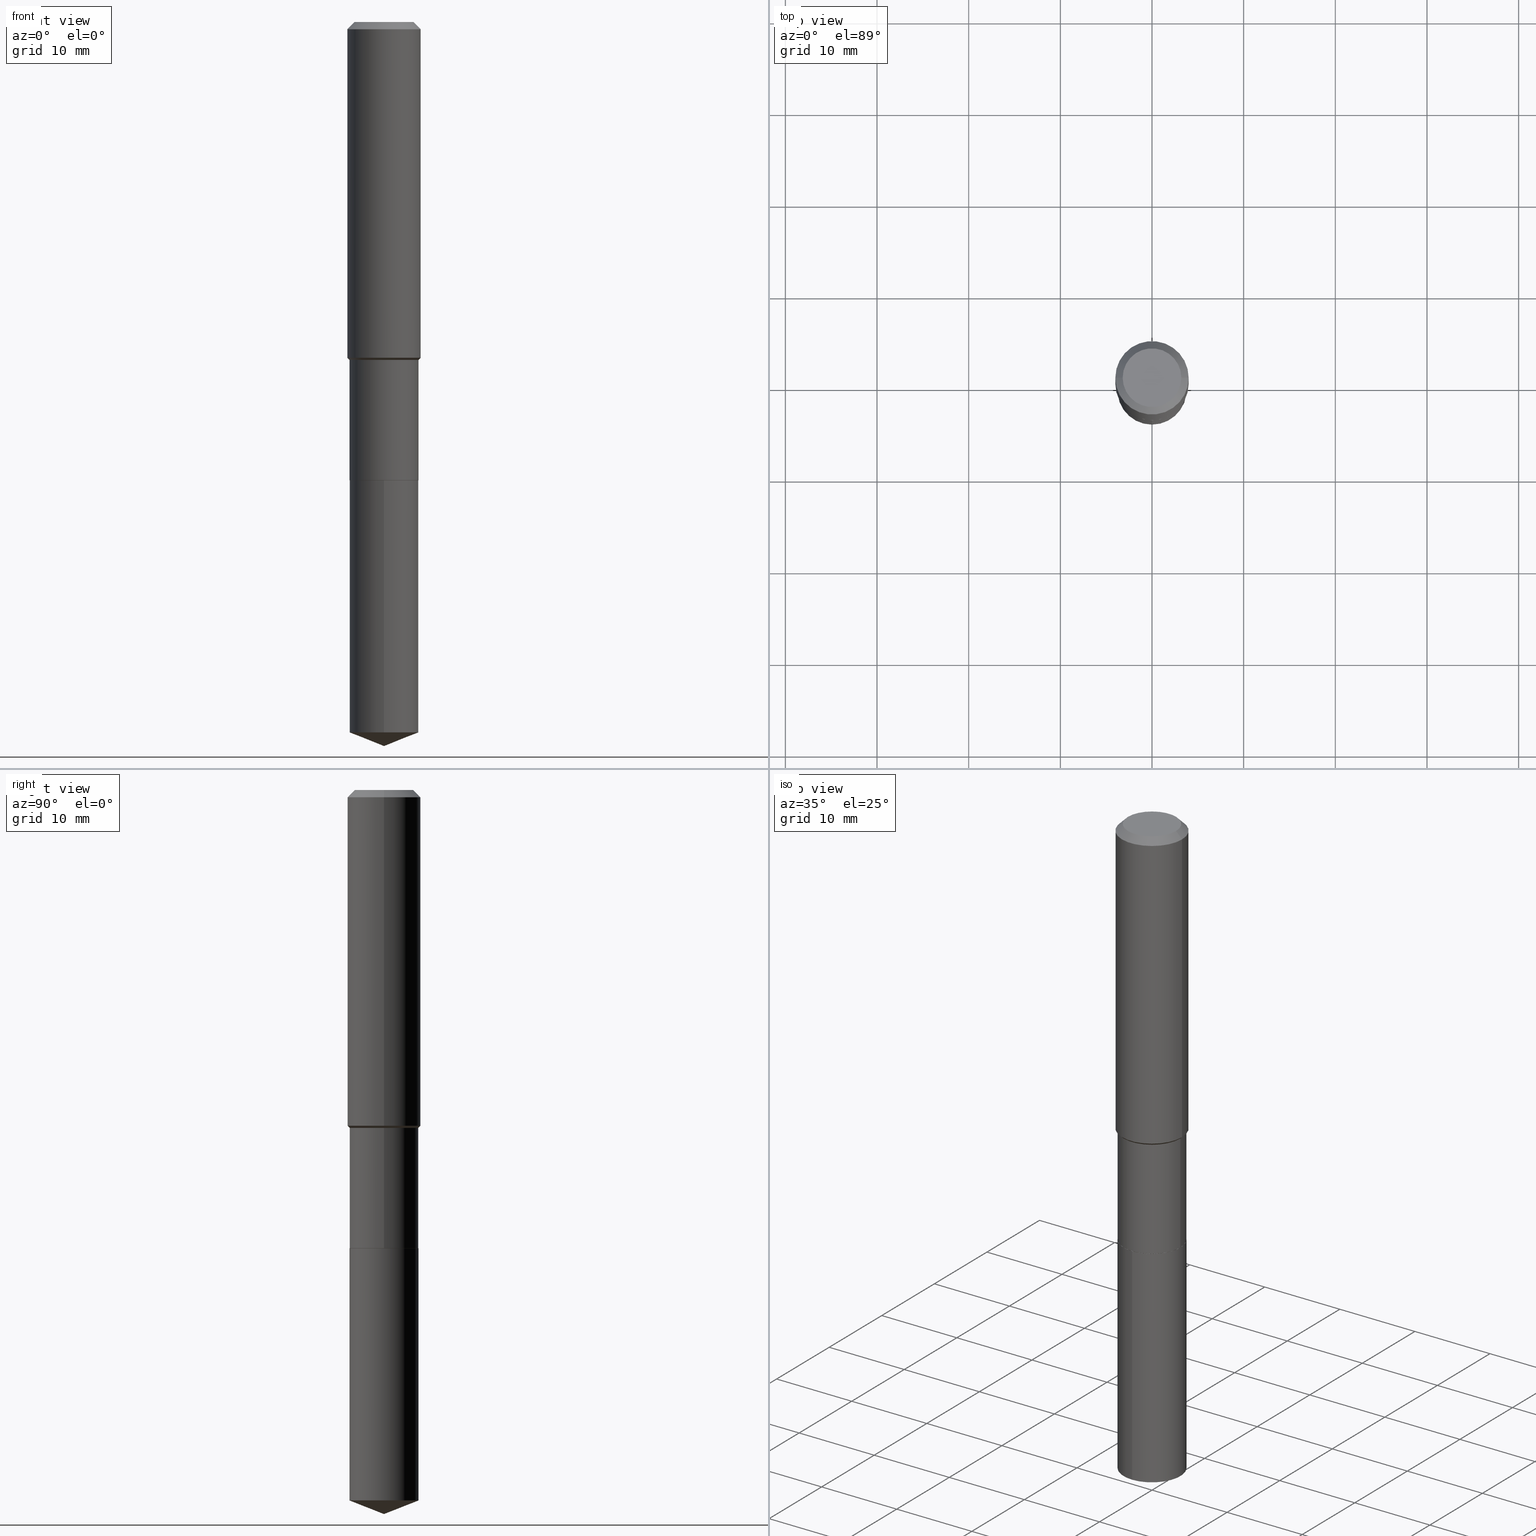
[diagram: canonical four-view strip — front | top / right | iso, engineering-drawing reading convention]
A machine part, canonical four-view strip (front | top / right | iso — engineering-drawing reading convention). The complete STEP part file that produces these views, byte-faithful:
ISO-10303-21;
HEADER;
FILE_DESCRIPTION (( 'STEP AP203' ),
    '1' );
FILE_NAME ('56414.STEP',
    '2024-04-24T17:22:41',
    ( '' ),
    ( '' ),
    'SwSTEP 2.0',
    'SolidWorks 2023',
    '' );
FILE_SCHEMA (( 'CONFIG_CONTROL_DESIGN' ));
ENDSEC;

DATA;
#1 = CALENDAR_DATE ( 2024, 24, 4 ) ;
#2 = DIRECTION ( 'NONE',  ( -2.445217522650849681E-29, 3.491841191166415000E-15, 1.000000000000000000 ) ) ;
#3 = CYLINDRICAL_SURFACE ( 'NONE', #223, 0.1575000000000000844 ) ;
#4 = DIRECTION ( 'NONE',  ( -2.445468806185136877E-29, 3.491481338843145188E-15, 1.000000000000000000 ) ) ;
#5 = ORIENTED_EDGE ( 'NONE', *, *, #111, .F. ) ;
#6 = DESIGN_CONTEXT ( 'detailed design', #249, 'design' ) ;
#7 = ADVANCED_FACE ( 'NONE', ( #159 ), #3, .T. ) ;
#8 = AXIS2_PLACEMENT_3D ( 'NONE', #341, #314, #172 ) ;
#9 = VECTOR ( 'NONE', #137, 39.37007874015748143 ) ;
#10 = FACE_OUTER_BOUND ( 'NONE', #26, .T. ) ;
#11 = DIRECTION ( 'NONE',  ( 1.000000000000000000, -6.982962677686265922E-15, 4.876176775795935793E-29 ) ) ;
#12 = EDGE_CURVE ( 'NONE', #297, #216, #461, .T. ) ;
#13 = DIRECTION ( 'NONE',  ( -2.445468806185136597E-29, 3.491481338843145583E-15, 1.000000000000000000 ) ) ;
#14 = CIRCLE ( 'NONE', #286, 0.1484499999999999154 ) ;
#15 = DIRECTION ( 'NONE',  ( -2.445468806185136877E-29, 3.491481338843145188E-15, 1.000000000000000000 ) ) ;
#16 = VERTEX_POINT ( 'NONE', #189 ) ;
#17 = ADVANCED_FACE ( 'NONE', ( #357 ), #451, .F. ) ;
#18 = EDGE_LOOP ( 'NONE', ( #400, #448, #209, #296 ) ) ;
#19 = DIRECTION ( 'NONE',  ( 1.000000000000000000, 0.000000000000000000, 0.000000000000000000 ) ) ;
#20 = ORIENTED_EDGE ( 'NONE', *, *, #56, .T. ) ;
#21 = LINE ( 'NONE', #260, #416 ) ;
#22 = EDGE_LOOP ( 'NONE', ( #258, #117, #34, #315 ) ) ;
#23 = DATE_AND_TIME ( #320, #383 ) ;
#24 = DIRECTION ( 'NONE',  ( -2.445217522650849681E-29, 3.491841191166415000E-15, 1.000000000000000000 ) ) ;
#25 = AXIS2_PLACEMENT_3D ( 'NONE', #226, #363, #444 ) ;
#26 = EDGE_LOOP ( 'NONE', ( #293, #489, #362, #246 ) ) ;
#27 = FACE_OUTER_BOUND ( 'NONE', #437, .T. ) ;
#28 = VECTOR ( 'NONE', #200, 39.37007874015748143 ) ;
#29 = ORIENTED_EDGE ( 'NONE', *, *, #422, .F. ) ;
#30 = CC_DESIGN_PERSON_AND_ORGANIZATION_ASSIGNMENT ( #310, #97, ( #54 ) ) ;
#31 = DATE_TIME_ROLE ( 'creation_date' ) ;
#32 = ORIENTED_EDGE ( 'NONE', *, *, #253, .T. ) ;
#33 = PERSON_AND_ORGANIZATION_ROLE ( 'design_supplier' ) ;
#34 = ORIENTED_EDGE ( 'NONE', *, *, #87, .T. ) ;
#35 = LOCAL_TIME ( 13, 22, 41.00000000000000000, #355 ) ;
#36 = AXIS2_PLACEMENT_3D ( 'NONE', #490, #481, #119 ) ;
#37 = VERTEX_POINT ( 'NONE', #482 ) ;
#38 = DIRECTION ( 'NONE',  ( -2.445217522650849681E-29, 3.491841191166415000E-15, 1.000000000000000000 ) ) ;
#39 = FACE_OUTER_BOUND ( 'NONE', #113, .T. ) ;
#40 = ADVANCED_FACE ( 'NONE', ( #408 ), #73, .T. ) ;
#41 = CARTESIAN_POINT ( 'NONE',  ( -8.866279621299083140E-28, 1.266144465408796120E-13, 36.25987874015748247 ) ) ;
#42 = CIRCLE ( 'NONE', #36, 0.1479499999999999982 ) ;
#43 = LINE ( 'NONE', #459, #28 ) ;
#44 = APPROVAL_PERSON_ORGANIZATION ( #353, #155, #227 ) ;
#45 = AXIS2_PLACEMENT_3D ( 'NONE', #472, #68, #478 ) ;
#46 = DIRECTION ( 'NONE',  ( -6.982962677686266711E-15, -1.000000000000000000, 3.498627837349979373E-15 ) ) ;
#47 = FACE_OUTER_BOUND ( 'NONE', #403, .T. ) ;
#48 = EDGE_CURVE ( 'NONE', #191, #480, #122, .T. ) ;
#49 = FACE_OUTER_BOUND ( 'NONE', #346, .T. ) ;
#50 = UNCERTAINTY_MEASURE_WITH_UNIT (LENGTH_MEASURE( 1.000000000000000082E-05 ), #140, 'distance_accuracy_value', 'NONE');
#51 = CIRCLE ( 'NONE', #358, 0.1260000000000000009 ) ;
#52 = CONICAL_SURFACE ( 'NONE', #454, 0.1484499999999999154, 0.7853981633974463916 ) ;
#53 = ORIENTED_EDGE ( 'NONE', *, *, #419, .T. ) ;
#54 = PRODUCT ( '56414', '56414', '', ( #378 ) ) ;
#55 = LENGTH_MEASURE_WITH_UNIT ( LENGTH_MEASURE( 0.02539999999999999897 ), #349 );
#56 = EDGE_CURVE ( 'NONE', #168, #156, #272, .T. ) ;
#57 = CARTESIAN_POINT ( 'NONE',  ( -0.1575000000000000011, -1.454029650871768556E-15, -0.03150000000000019451 ) ) ;
#58 = CARTESIAN_POINT ( 'NONE',  ( 1.054800691235942672E-15, 0.1484499999999892572, -3.051723989894963296 ) ) ;
#59 = ORIENTED_EDGE ( 'NONE', *, *, #431, .F. ) ;
#60 =( NAMED_UNIT ( * ) SI_UNIT ( $, .STERADIAN. ) SOLID_ANGLE_UNIT ( ) );
#61 = ORIENTED_EDGE ( 'NONE', *, *, #229, .F. ) ;
#62 = PRODUCT_RELATED_PRODUCT_CATEGORY ( 'detail', '', ( #54 ) ) ;
#63 = PERSON_AND_ORGANIZATION ( #91, #126 ) ;
#64 = ORIENTED_EDGE ( 'NONE', *, *, #124, .F. ) ;
#65 = DATE_AND_TIME ( #398, #205 ) ;
#66 = CARTESIAN_POINT ( 'NONE',  ( 7.605115538948672925E-29, -1.086032447276578313E-14, -3.110199999999999854 ) ) ;
#67 = SHAPE_DEFINITION_REPRESENTATION ( #415, #455 ) ;
#68 = DIRECTION ( 'NONE',  ( -2.445468806185136597E-29, 3.491481338843145583E-15, 1.000000000000000000 ) ) ;
#69 = EDGE_CURVE ( 'NONE', #133, #327, #379, .T. ) ;
#70 = AXIS2_PLACEMENT_3D ( 'NONE', #374, #120, #266 ) ;
#71 = CC_DESIGN_APPROVAL ( #155, ( #336 ) ) ;
#72 = ORIENTED_EDGE ( 'NONE', *, *, #94, .T. ) ;
#73 = CONICAL_SURFACE ( 'NONE', #143, 99.94676754584068590, 1.195550537616121956 ) ;
#74 = DIRECTION ( 'NONE',  ( -1.000000000000000000, 6.982962677686265922E-15, -4.876176775795935793E-29 ) ) ;
#75 = VECTOR ( 'NONE', #388, 39.37007874015748143 ) ;
#76 = APPROVAL_DATE_TIME ( #174, #487 ) ;
#77 = ORIENTED_EDGE ( 'NONE', *, *, #330, .F. ) ;
#78 = VERTEX_POINT ( 'NONE', #58 ) ;
#79 = CARTESIAN_POINT ( 'NONE',  ( -4.719860820353100843E-47, 6.738710358733633822E-33, 1.930043355456229866E-18 ) ) ;
#80 = DIRECTION ( 'NONE',  ( -0.7071067811865451302, 2.468850131082231817E-15, -0.7071067811865499042 ) ) ;
#81 = ORIENTED_EDGE ( 'NONE', *, *, #197, .T. ) ;
#82 = ORIENTED_EDGE ( 'NONE', *, *, #419, .F. ) ;
#83 = EDGE_CURVE ( 'NONE', #389, #16, #131, .T. ) ;
#84 = AXIS2_PLACEMENT_3D ( 'NONE', #202, #417, #238 ) ;
#85 = DIRECTION ( 'NONE',  ( 1.000000000000000000, -6.982962677686266711E-15, 4.876176775795936353E-29 ) ) ;
#86 = DIRECTION ( 'NONE',  ( 1.000000000000000000, -6.982962677686265133E-15, 0.000000000000000000 ) ) ;
#87 = EDGE_CURVE ( 'NONE', #327, #191, #151, .T. ) ;
#88 = CIRCLE ( 'NONE', #45, 0.1575000000000000011 ) ;
#89 = APPLICATION_CONTEXT ( 'configuration controlled 3d designs of mechanical parts and assemblies' ) ;
#90 = DIRECTION ( 'NONE',  ( 1.000000000000000000, -6.982962677686265133E-15, 0.000000000000000000 ) ) ;
#91 = PERSON ( 'UNSPECIFIED', 'UNSPECIFIED', 'UNSPECIFIED', ('UNSPECIFIED'), ('UNSPECIFIED'), ('UNSPECIFIED') ) ;
#92 = DIRECTION ( 'NONE',  ( -2.445217522650849681E-29, 3.491841191166415000E-15, 1.000000000000000000 ) ) ;
#93 = AXIS2_PLACEMENT_3D ( 'NONE', #79, #412, #74 ) ;
#94 = EDGE_CURVE ( 'NONE', #156, #168, #135, .T. ) ;
#95 = DIRECTION ( 'NONE',  ( 1.000000000000000000, -6.982962677686265922E-15, 4.876281427513067258E-29 ) ) ;
#96 = AXIS2_PLACEMENT_3D ( 'NONE', #424, #413, #86 ) ;
#97 = PERSON_AND_ORGANIZATION_ROLE ( 'design_owner' ) ;
#98 = LINE ( 'NONE', #345, #75 ) ;
#99 = EDGE_CURVE ( 'NONE', #216, #297, #421, .T. ) ;
#100 = ORIENTED_EDGE ( 'NONE', *, *, #130, .T. ) ;
#101 = DIRECTION ( 'NONE',  ( 2.445468806185136597E-29, -3.491481338843145583E-15, -1.000000000000000000 ) ) ;
#102 = VECTOR ( 'NONE', #328, 39.37007874015748143 ) ;
#103 = CIRCLE ( 'NONE', #453, 0.1484499999999999709 ) ;
#104 = ORIENTED_EDGE ( 'NONE', *, *, #422, .T. ) ;
#105 = CARTESIAN_POINT ( 'NONE',  ( -0.1479499999999999982, -5.821733037955664087E-15, -1.968500000000000139 ) ) ;
#106 = ORIENTED_EDGE ( 'NONE', *, *, #197, .F. ) ;
#107 = COORDINATED_UNIVERSAL_TIME_OFFSET ( 5, 0, .BEHIND. ) ;
#108 = ORIENTED_EDGE ( 'NONE', *, *, #402, .F. ) ;
#109 = CARTESIAN_POINT ( 'NONE',  ( -0.1484500000000000264, -4.914759527851199198E-15, -1.968000000000000194 ) ) ;
#110 = COORDINATED_UNIVERSAL_TIME_OFFSET ( 5, 0, .BEHIND. ) ;
#111 = EDGE_CURVE ( 'NONE', #37, #395, #21, .T. ) ;
#112 = DIRECTION ( 'NONE',  ( -2.445468806185136597E-29, 3.491481338843145583E-15, 1.000000000000000000 ) ) ;
#113 = EDGE_LOOP ( 'NONE', ( #72, #81, #64, #256 ) ) ;
#114 = VECTOR ( 'NONE', #399, 39.37007874015748143 ) ;
#115 = APPROVAL_STATUS ( 'not_yet_approved' ) ;
#116 = EDGE_LOOP ( 'NONE', ( #277, #32, #443, #319 ) ) ;
#117 = ORIENTED_EDGE ( 'NONE', *, *, #164, .T. ) ;
#118 = ADVANCED_FACE ( 'NONE', ( #287 ), #316, .T. ) ;
#119 = DIRECTION ( 'NONE',  ( 1.000000000000000000, -6.982962677686265133E-15, 0.000000000000000000 ) ) ;
#120 = DIRECTION ( 'NONE',  ( 2.445468806185136597E-29, -3.491481338843145583E-15, -1.000000000000000000 ) ) ;
#121 = CONICAL_SURFACE ( 'NONE', #427, 0.1575000000000000011, 0.7853981633974449483 ) ;
#122 = CIRCLE ( 'NONE', #384, 0.1484499999999999986 ) ;
#123 = CONICAL_SURFACE ( 'NONE', #434, 99.94676754584068590, 1.195550537616121956 ) ;
#124 = EDGE_CURVE ( 'NONE', #16, #395, #88, .T. ) ;
#125 = FACE_OUTER_BOUND ( 'NONE', #290, .T. ) ;
#126 = ORGANIZATION ( 'UNSPECIFIED', 'UNSPECIFIED', '' ) ;
#127 = DIRECTION ( 'NONE',  ( 1.000000000000000000, -6.982962677686267499E-15, 0.000000000000000000 ) ) ;
#128 = CARTESIAN_POINT ( 'NONE',  ( 4.813905344975441835E-29, -6.872981015512731707E-15, -1.968500000000000139 ) ) ;
#129 = DIRECTION ( 'NONE',  ( -2.445468806185136597E-29, 3.491481338843145583E-15, 1.000000000000000000 ) ) ;
#130 = EDGE_CURVE ( 'NONE', #418, #297, #488, .T. ) ;
#131 = LINE ( 'NONE', #188, #102 ) ;
#132 = DIRECTION ( 'NONE',  ( 0.7071067811866320607, -2.468850131083142557E-15, 0.7071067811864629737 ) ) ;
#133 = VERTEX_POINT ( 'NONE', #66 ) ;
#134 = DIRECTION ( 'NONE',  ( -2.445468806185136597E-29, 3.491481338843145583E-15, 1.000000000000000000 ) ) ;
#135 = CIRCLE ( 'NONE', #247, 0.1575000000000001676 ) ;
#136 = EDGE_LOOP ( 'NONE', ( #29, #484, #352 ) ) ;
#137 = DIRECTION ( 'NONE',  ( 6.611014441532073689E-15, 0.9304175679820281264, 0.3665012267242882538 ) ) ;
#138 = EDGE_CURVE ( 'NONE', #395, #16, #171, .T. ) ;
#139 = EDGE_LOOP ( 'NONE', ( #231, #61 ) ) ;
#140 =( CONVERSION_BASED_UNIT ( 'INCH', #55 ) LENGTH_UNIT ( ) NAMED_UNIT ( #372 ) );
#141 = ORIENTED_EDGE ( 'NONE', *, *, #330, .T. ) ;
#142 = CARTESIAN_POINT ( 'NONE',  ( 4.813905344975441835E-29, -6.872981015512731707E-15, -1.968500000000000139 ) ) ;
#143 = AXIS2_PLACEMENT_3D ( 'NONE', #299, #38, #476 ) ;
#144 = VECTOR ( 'NONE', #368, 39.37007874015748143 ) ;
#145 = DIRECTION ( 'NONE',  ( -6.982962677686265133E-15, -1.000000000000000000, 3.680495781292372402E-15 ) ) ;
#146 = ORIENTED_EDGE ( 'NONE', *, *, #402, .T. ) ;
#147 = CYLINDRICAL_SURFACE ( 'NONE', #25, 0.1484499999999999431 ) ;
#148 = ADVANCED_FACE ( 'NONE', ( #406 ), #220, .T. ) ;
#149 = DIRECTION ( 'NONE',  ( -2.445468806185136597E-29, 3.491481338843145583E-15, 1.000000000000000000 ) ) ;
#150 = CARTESIAN_POINT ( 'NONE',  ( 0.1575000000000000844, -1.099816621735587677E-15, 7.679978421878603638E-30 ) ) ;
#151 = LINE ( 'NONE', #436, #178 ) ;
#152 = CARTESIAN_POINT ( 'NONE',  ( 0.000000000000000000, 0.000000000000000000, 0.000000000000000000 ) ) ;
#153 = AXIS2_PLACEMENT_3D ( 'NONE', #326, #112, #442 ) ;
#154 = DIRECTION ( 'NONE',  ( -0.7071067811865461294, 7.493145998870349427E-15, 0.7071067811865489050 ) ) ;
#155 = APPROVAL ( #115, 'UNSPECIFIED' ) ;
#156 = VERTEX_POINT ( 'NONE', #289 ) ;
#157 = CYLINDRICAL_SURFACE ( 'NONE', #382, 0.1484499999999999431 ) ;
#158 = DIRECTION ( 'NONE',  ( -2.445468806185136877E-29, 3.491481338843145188E-15, 1.000000000000000000 ) ) ;
#159 = FACE_OUTER_BOUND ( 'NONE', #264, .T. ) ;
#160 = CC_DESIGN_APPROVAL ( #487, ( #370 ) ) ;
#161 = DIRECTION ( 'NONE',  ( -2.445468806185136597E-29, 3.491481338843145583E-15, 1.000000000000000000 ) ) ;
#162 = LOCAL_TIME ( 13, 22, 41.00000000000000000, #107 ) ;
#163 = FACE_OUTER_BOUND ( 'NONE', #116, .T. ) ;
#164 = EDGE_CURVE ( 'NONE', #78, #327, #404, .T. ) ;
#165 = PERSON_AND_ORGANIZATION ( #91, #126 ) ;
#166 = ORIENTED_EDGE ( 'NONE', *, *, #466, .T. ) ;
#167 = CARTESIAN_POINT ( 'NONE',  ( 0.000000000000000000, 0.000000000000000000, 0.000000000000000000 ) ) ;
#168 = VERTEX_POINT ( 'NONE', #340 ) ;
#169 = CC_DESIGN_PERSON_AND_ORGANIZATION_ASSIGNMENT ( #63, #254, ( #338 ) ) ;
#170 = CC_DESIGN_APPROVAL ( #261, ( #338 ) ) ;
#171 = CIRCLE ( 'NONE', #153, 0.1575000000000000011 ) ;
#172 = DIRECTION ( 'NONE',  ( 1.000000000000000000, -6.982962677686265133E-15, 0.000000000000000000 ) ) ;
#173 = ORIENTED_EDGE ( 'NONE', *, *, #210, .T. ) ;
#174 = DATE_AND_TIME ( #405, #35 ) ;
#175 = DIRECTION ( 'NONE',  ( -2.445468806185136597E-29, 3.491481338843145583E-15, 1.000000000000000000 ) ) ;
#176 = ORIENTED_EDGE ( 'NONE', *, *, #270, .F. ) ;
#177 = DATE_AND_TIME ( #257, #162 ) ;
#178 = VECTOR ( 'NONE', #2, 39.37007874015748143 ) ;
#179 = ADVANCED_FACE ( 'NONE', ( #163 ), #242, .T. ) ;
#180 = VECTOR ( 'NONE', #158, 39.37007874015748143 ) ;
#181 = ORIENTED_EDGE ( 'NONE', *, *, #138, .T. ) ;
#182 = APPROVAL_ROLE ( '' ) ;
#183 = LINE ( 'NONE', #150, #475 ) ;
#184 = APPROVAL_DATE_TIME ( #322, #261 ) ;
#185 = ORIENTED_EDGE ( 'NONE', *, *, #278, .T. ) ;
#186 = DIRECTION ( 'NONE',  ( 1.000000000000000000, -6.982962677686265133E-15, 0.000000000000000000 ) ) ;
#187 = EDGE_CURVE ( 'NONE', #440, #418, #207, .T. ) ;
#188 = CARTESIAN_POINT ( 'NONE',  ( 0.1575000000000000011, -1.190510096822576026E-15, -0.03150000000000019451 ) ) ;
#189 = CARTESIAN_POINT ( 'NONE',  ( 0.1575000000000000011, -1.209798283909146741E-15, -0.03150000000000019451 ) ) ;
#190 = LINE ( 'NONE', #194, #180 ) ;
#191 = VERTEX_POINT ( 'NONE', #386 ) ;
#192 = CARTESIAN_POINT ( 'NONE',  ( 3.549597972177726133E-29, -5.067885163330826020E-15, -1.451500000000000012 ) ) ;
#193 = CARTESIAN_POINT ( 'NONE',  ( 7.605115538948672925E-29, -1.086032447276578629E-14, -3.110199999999999854 ) ) ;
#194 = CARTESIAN_POINT ( 'NONE',  ( 0.1484499999999999431, -1.036620809502525896E-15, 7.238684423669065009E-30 ) ) ;
#195 = ORIENTED_EDGE ( 'NONE', *, *, #12, .F. ) ;
#196 = AXIS2_PLACEMENT_3D ( 'NONE', #206, #92, #447 ) ;
#197 = EDGE_CURVE ( 'NONE', #168, #395, #273, .T. ) ;
#198 = APPROVAL_PERSON_ORGANIZATION ( #165, #261, #435 ) ;
#199 = AXIS2_PLACEMENT_3D ( 'NONE', #255, #409, #323 ) ;
#200 = DIRECTION ( 'NONE',  ( -2.445468806185136877E-29, 3.491481338843145188E-15, 1.000000000000000000 ) ) ;
#201 = CONICAL_SURFACE ( 'NONE', #473, 0.1479499999999999982, 0.7853981633975678500 ) ;
#202 = CARTESIAN_POINT ( 'NONE',  ( 4.813905344975441835E-29, -6.872981015512731707E-15, -1.968500000000000139 ) ) ;
#203 = ADVANCED_FACE ( 'NONE', ( #463 ), #303, .T. ) ;
#204 = CARTESIAN_POINT ( 'NONE',  ( 7.606113517245099603E-29, -1.085890773416907308E-14, -3.110199999999999854 ) ) ;
#205 = LOCAL_TIME ( 13, 22, 41.00000000000000000, #359 ) ;
#206 = CARTESIAN_POINT ( 'NONE',  ( 4.813905344975441835E-29, -6.872981015512731707E-15, -1.968500000000000139 ) ) ;
#207 = CIRCLE ( 'NONE', #467, 0.1479499999999999982 ) ;
#208 = LINE ( 'NONE', #204, #9 ) ;
#209 = ORIENTED_EDGE ( 'NONE', *, *, #94, .F. ) ;
#210 = EDGE_CURVE ( 'NONE', #297, #392, #43, .T. ) ;
#211 = ORIENTED_EDGE ( 'NONE', *, *, #99, .F. ) ;
#212 = CARTESIAN_POINT ( 'NONE',  ( -9.439721640706201686E-47, 1.347742071746726764E-32, 3.860086710912459732E-18 ) ) ;
#213 = ORIENTED_EDGE ( 'NONE', *, *, #187, .T. ) ;
#214 =( NAMED_UNIT ( * ) PLANE_ANGLE_UNIT ( ) SI_UNIT ( $, .RADIAN. ) );
#215 = CLOSED_SHELL ( 'NONE', ( #179, #312, #40, #148, #380 ) ) ;
#216 = VERTEX_POINT ( 'NONE', #339 ) ;
#217 = DATE_TIME_ROLE ( 'classification_date' ) ;
#218 = CARTESIAN_POINT ( 'NONE',  ( 3.527466479481750238E-29, -5.036287257214294044E-15, -1.442449999999999788 ) ) ;
#219 = ADVANCED_FACE ( 'NONE', ( #10 ), #52, .T. ) ;
#220 = CYLINDRICAL_SURFACE ( 'NONE', #224, 0.1484499999999999986 ) ;
#221 = ORIENTED_EDGE ( 'NONE', *, *, #466, .F. ) ;
#222 = SECURITY_CLASSIFICATION_LEVEL ( 'unclassified' ) ;
#223 = AXIS2_PLACEMENT_3D ( 'NONE', #152, #149, #262 ) ;
#224 = AXIS2_PLACEMENT_3D ( 'NONE', #356, #24, #145 ) ;
#225 = ORIENTED_EDGE ( 'NONE', *, *, #138, .F. ) ;
#226 = CARTESIAN_POINT ( 'NONE',  ( 0.000000000000000000, 0.000000000000000000, 0.000000000000000000 ) ) ;
#227 = APPROVAL_ROLE ( '' ) ;
#228 = DIRECTION ( 'NONE',  ( 1.000000000000000000, -6.982962677686268288E-15, 0.000000000000000000 ) ) ;
#229 = EDGE_CURVE ( 'NONE', #418, #440, #42, .T. ) ;
#230 = APPROVAL_STATUS ( 'not_yet_approved' ) ;
#231 = ORIENTED_EDGE ( 'NONE', *, *, #187, .F. ) ;
#232 = CARTESIAN_POINT ( 'NONE',  ( -0.1484499999999999154, -4.013084472094958290E-15, -1.451500000000000012 ) ) ;
#233 = ORIENTED_EDGE ( 'NONE', *, *, #99, .T. ) ;
#234 = LINE ( 'NONE', #232, #309 ) ;
#235 = CARTESIAN_POINT ( 'NONE',  ( 1.054800691235916639E-15, 0.1484499999999931152, -1.968500000000000583 ) ) ;
#236 = DIRECTION ( 'NONE',  ( -6.982962677686265133E-15, -1.000000000000000000, 3.680495781292372402E-15 ) ) ;
#237 = ADVANCED_FACE ( 'NONE', ( #485 ), #365, .F. ) ;
#238 = DIRECTION ( 'NONE',  ( 6.982962677686265922E-15, 1.000000000000000000, -3.491841191166415000E-15 ) ) ;
#239 = DIRECTION ( 'NONE',  ( 1.000000000000000000, -6.982962677686265133E-15, 0.000000000000000000 ) ) ;
#240 = EDGE_CURVE ( 'NONE', #392, #168, #234, .T. ) ;
#241 = CARTESIAN_POINT ( 'NONE',  ( 4.813905344975441835E-29, -6.872981015512731707E-15, -1.968500000000000139 ) ) ;
#242 = CYLINDRICAL_SURFACE ( 'NONE', #196, 0.1484499999999999986 ) ;
#243 = CARTESIAN_POINT ( 'NONE',  ( 3.527466479481750238E-29, -5.036287257214294044E-15, -1.442449999999999788 ) ) ;
#244 = DIRECTION ( 'NONE',  ( -1.000000000000000000, 6.982962677686265922E-15, 0.000000000000000000 ) ) ;
#245 = CARTESIAN_POINT ( 'NONE',  ( 4.813905344975441835E-29, -6.872981015512731707E-15, -1.968500000000000139 ) ) ;
#246 = ORIENTED_EDGE ( 'NONE', *, *, #56, .F. ) ;
#247 = AXIS2_PLACEMENT_3D ( 'NONE', #218, #175, #263 ) ;
#248 = CIRCLE ( 'NONE', #428, 0.1260000000000000009 ) ;
#249 = APPLICATION_CONTEXT ( 'configuration controlled 3d designs of mechanical parts and assemblies' ) ;
#250 = EDGE_LOOP ( 'NONE', ( #53, #166 ) ) ;
#251 =( GEOMETRIC_REPRESENTATION_CONTEXT ( 3 ) GLOBAL_UNCERTAINTY_ASSIGNED_CONTEXT ( ( #50 ) ) GLOBAL_UNIT_ASSIGNED_CONTEXT ( ( #140, #214, #60 ) ) REPRESENTATION_CONTEXT ( 'NONE', 'WORKASPACE' ) );
#252 = AXIS2_PLACEMENT_3D ( 'NONE', #298, #367, #228 ) ;
#253 = EDGE_CURVE ( 'NONE', #78, #480, #371, .T. ) ;
#254 = PERSON_AND_ORGANIZATION_ROLE ( 'creator' ) ;
#255 = CARTESIAN_POINT ( 'NONE',  ( 4.812682610572349594E-29, -6.871235274843310993E-15, -1.968000000000000194 ) ) ;
#256 = ORIENTED_EDGE ( 'NONE', *, *, #278, .F. ) ;
#257 = CALENDAR_DATE ( 2024, 24, 4 ) ;
#258 = ORIENTED_EDGE ( 'NONE', *, *, #253, .F. ) ;
#259 = VECTOR ( 'NONE', #15, 39.37007874015748143 ) ;
#260 = CARTESIAN_POINT ( 'NONE',  ( -0.1575000000000000011, 9.898349595620272334E-16, -0.03150000000000019451 ) ) ;
#261 = APPROVAL ( #230, 'UNSPECIFIED' ) ;
#262 = DIRECTION ( 'NONE',  ( 1.000000000000000000, -6.982962677686267499E-15, 4.876176775795936353E-29 ) ) ;
#263 = DIRECTION ( 'NONE',  ( 1.000000000000000000, -6.982962677686267499E-15, 0.000000000000000000 ) ) ;
#264 = EDGE_LOOP ( 'NONE', ( #106, #20, #185, #225 ) ) ;
#265 = DIRECTION ( 'NONE',  ( -2.445468806185136597E-29, 3.491481338843145583E-15, 1.000000000000000000 ) ) ;
#266 = DIRECTION ( 'NONE',  ( -1.000000000000000000, 6.982962677686265922E-15, 0.000000000000000000 ) ) ;
#267 = CIRCLE ( 'NONE', #385, 0.1484499999999999986 ) ;
#268 = CARTESIAN_POINT ( 'NONE',  ( 7.462623626022371955E-29, -1.065542716268759565E-14, -3.051723989894962852 ) ) ;
#269 = PLANE ( 'NONE',  #84 ) ;
#270 = EDGE_CURVE ( 'NONE', #327, #78, #103, .T. ) ;
#271 = CC_DESIGN_SECURITY_CLASSIFICATION ( #336, ( #370 ) ) ;
#272 = CIRCLE ( 'NONE', #308, 0.1575000000000001676 ) ;
#273 = LINE ( 'NONE', #274, #259 ) ;
#274 = CARTESIAN_POINT ( 'NONE',  ( -0.1575000000000000844, 1.119104808822158392E-15, -7.747322767151481189E-30 ) ) ;
#275 = CARTESIAN_POINT ( 'NONE',  ( -0.1479499999999999982, -5.819083810781552886E-15, -1.968500000000000139 ) ) ;
#276 = DIRECTION ( 'NONE',  ( -6.497071151882126147E-15, -0.9304175679820254619, 0.3665012267242948041 ) ) ;
#277 = ORIENTED_EDGE ( 'NONE', *, *, #270, .T. ) ;
#278 = EDGE_CURVE ( 'NONE', #156, #16, #183, .T. ) ;
#279 = CIRCLE ( 'NONE', #8, 0.1484499999999999154 ) ;
#280 = CARTESIAN_POINT ( 'NONE',  ( 0.1479499999999999982, -7.906110343676414596E-15, -1.968500000000000139 ) ) ;
#281 = ORIENTED_EDGE ( 'NONE', *, *, #83, .T. ) ;
#282 = CARTESIAN_POINT ( 'NONE',  ( -0.1484499999999999154, -4.914759527851200776E-15, -1.451500000000000012 ) ) ;
#283 = ORIENTED_EDGE ( 'NONE', *, *, #48, .T. ) ;
#284 = ORIENTED_EDGE ( 'NONE', *, *, #375, .F. ) ;
#285 = AXIS2_PLACEMENT_3D ( 'NONE', #167, #393, #19 ) ;
#286 = AXIS2_PLACEMENT_3D ( 'NONE', #458, #161, #304 ) ;
#287 = FACE_OUTER_BOUND ( 'NONE', #470, .T. ) ;
#288 = PERSON_AND_ORGANIZATION ( #91, #126 ) ;
#289 = CARTESIAN_POINT ( 'NONE',  ( 0.1575000000000001676, -6.136103878949882313E-15, -1.442449999999999788 ) ) ;
#290 = EDGE_LOOP ( 'NONE', ( #283, #364 ) ) ;
#291 = ADVANCED_FACE ( 'NONE', ( #324 ), #157, .T. ) ;
#292 = DIRECTION ( 'NONE',  ( -2.445468806185136597E-29, 3.491481338843145583E-15, 1.000000000000000000 ) ) ;
#293 = ORIENTED_EDGE ( 'NONE', *, *, #240, .F. ) ;
#294 = DIRECTION ( 'NONE',  ( -6.982962677686265133E-15, -1.000000000000000000, 3.680495781292373191E-15 ) ) ;
#295 = AXIS2_PLACEMENT_3D ( 'NONE', #142, #292, #321 ) ;
#296 = ORIENTED_EDGE ( 'NONE', *, *, #438, .F. ) ;
#297 = VERTEX_POINT ( 'NONE', #109 ) ;
#298 = CARTESIAN_POINT ( 'NONE',  ( 4.812682610572349594E-29, -6.871235274843310993E-15, -1.968000000000000194 ) ) ;
#299 = CARTESIAN_POINT ( 'NONE',  ( -8.866279621299083140E-28, 1.266144465408796120E-13, 36.25987874015748247 ) ) ;
#300 = CYLINDRICAL_SURFACE ( 'NONE', #302, 0.1575000000000000844 ) ;
#301 = ADVANCED_FACE ( 'NONE', ( #27 ), #147, .T. ) ;
#302 = AXIS2_PLACEMENT_3D ( 'NONE', #333, #377, #450 ) ;
#303 = CONICAL_SURFACE ( 'NONE', #96, 0.1484499999999999154, 0.7853981633974463916 ) ;
#304 = DIRECTION ( 'NONE',  ( 1.000000000000000000, -6.982962677686265133E-15, 0.000000000000000000 ) ) ;
#305 = CC_DESIGN_PERSON_AND_ORGANIZATION_ASSIGNMENT ( #396, #441, ( #370 ) ) ;
#306 = CARTESIAN_POINT ( 'NONE',  ( -1.036620809502450954E-15, -0.1484500000000105457, -3.051723989894962408 ) ) ;
#307 = CARTESIAN_POINT ( 'NONE',  ( 4.813905344975441835E-29, -6.872981015512731707E-15, -1.968500000000000139 ) ) ;
#308 = AXIS2_PLACEMENT_3D ( 'NONE', #243, #456, #127 ) ;
#309 = VECTOR ( 'NONE', #154, 39.37007874015748143 ) ;
#310 = PERSON_AND_ORGANIZATION ( #91, #126 ) ;
#311 = CARTESIAN_POINT ( 'NONE',  ( 0.1479499999999999982, -7.906110343676414596E-15, -1.968500000000000139 ) ) ;
#312 = ADVANCED_FACE ( 'NONE', ( #47 ), #123, .T. ) ;
#313 = EDGE_LOOP ( 'NONE', ( #348, #82, #465, #181 ) ) ;
#314 = DIRECTION ( 'NONE',  ( -2.445468806185136597E-29, 3.491481338843145583E-15, 1.000000000000000000 ) ) ;
#315 = ORIENTED_EDGE ( 'NONE', *, *, #318, .F. ) ;
#316 = CONICAL_SURFACE ( 'NONE', #295, 0.1479499999999999982, 0.7853981633975678500 ) ;
#317 = FACE_OUTER_BOUND ( 'NONE', #313, .T. ) ;
#318 = EDGE_CURVE ( 'NONE', #480, #191, #267, .T. ) ;
#319 = ORIENTED_EDGE ( 'NONE', *, *, #87, .F. ) ;
#320 = CALENDAR_DATE ( 2024, 24, 4 ) ;
#321 = DIRECTION ( 'NONE',  ( 1.000000000000000000, -6.982962677686265133E-15, 0.000000000000000000 ) ) ;
#322 = DATE_AND_TIME ( #1, #394 ) ;
#323 = DIRECTION ( 'NONE',  ( 1.000000000000000000, -6.982962677686268288E-15, 0.000000000000000000 ) ) ;
#324 = FACE_OUTER_BOUND ( 'NONE', #425, .T. ) ;
#325 = PERSON_AND_ORGANIZATION_ROLE ( 'classification_officer' ) ;
#326 = CARTESIAN_POINT ( 'NONE',  ( 7.703226739483228723E-31, -1.099816621735597661E-16, -0.03150000000000019451 ) ) ;
#327 = VERTEX_POINT ( 'NONE', #306 ) ;
#328 = DIRECTION ( 'NONE',  ( 0.7071067811865451302, -7.319954787623248157E-15, -0.7071067811865499042 ) ) ;
#329 = DIRECTION ( 'NONE',  ( -2.445217522650849681E-29, 3.491841191166415000E-15, 1.000000000000000000 ) ) ;
#330 = EDGE_CURVE ( 'NONE', #216, #410, #190, .T. ) ;
#331 = ORIENTED_EDGE ( 'NONE', *, *, #130, .F. ) ;
#332 = DIRECTION ( 'NONE',  ( -6.982962677686265133E-15, -1.000000000000000000, 3.680495781292373191E-15 ) ) ;
#333 = CARTESIAN_POINT ( 'NONE',  ( 0.000000000000000000, 0.000000000000000000, 0.000000000000000000 ) ) ;
#334 = DIRECTION ( 'NONE',  ( -2.445217522650849681E-29, 3.491841191166415000E-15, 1.000000000000000000 ) ) ;
#335 = AXIS2_PLACEMENT_3D ( 'NONE', #483, #439, #294 ) ;
#336 = SECURITY_CLASSIFICATION ( '', '', #222 ) ;
#337 = AXIS2_PLACEMENT_3D ( 'NONE', #245, #479, #11 ) ;
#338 = PRODUCT_DEFINITION ( 'UNKNOWN', '', #370, #6 ) ;
#339 = CARTESIAN_POINT ( 'NONE',  ( 0.1484499999999999986, -7.907856084345836888E-15, -1.968000000000000194 ) ) ;
#340 = CARTESIAN_POINT ( 'NONE',  ( -0.1575000000000001676, -3.917182448392135652E-15, -1.442449999999999788 ) ) ;
#341 = CARTESIAN_POINT ( 'NONE',  ( 3.549597972177726133E-29, -5.067885163330826020E-15, -1.451500000000000012 ) ) ;
#342 = CLOSED_SHELL ( 'NONE', ( #118, #369, #361, #203, #301, #291, #219, #7, #474, #237, #17, #457 ) ) ;
#343 = VECTOR ( 'NONE', #132, 39.37007874015748143 ) ;
#344 = DIRECTION ( 'NONE',  ( -2.445468806185136597E-29, 3.491481338843145583E-15, 1.000000000000000000 ) ) ;
#345 = CARTESIAN_POINT ( 'NONE',  ( 0.1484499999999999154, -6.104505972833351915E-15, -1.451500000000000012 ) ) ;
#346 = EDGE_LOOP ( 'NONE', ( #221, #281, #397, #5 ) ) ;
#347 = CARTESIAN_POINT ( 'NONE',  ( -9.439721640706201686E-47, 1.347742071746726764E-32, 3.860086710912459732E-18 ) ) ;
#348 = ORIENTED_EDGE ( 'NONE', *, *, #83, .F. ) ;
#349 =( LENGTH_UNIT ( ) NAMED_UNIT ( * ) SI_UNIT ( $, .METRE. ) );
#350 = CC_DESIGN_PERSON_AND_ORGANIZATION_ASSIGNMENT ( #288, #325, ( #336 ) ) ;
#351 = CARTESIAN_POINT ( 'NONE',  ( 1.054800691235943263E-15, 0.1484499999999930875, -1.968500000000000583 ) ) ;
#352 = ORIENTED_EDGE ( 'NONE', *, *, #164, .F. ) ;
#353 = PERSON_AND_ORGANIZATION ( #91, #126 ) ;
#354 = EDGE_LOOP ( 'NONE', ( #331, #432, #146, #195 ) ) ;
#355 = COORDINATED_UNIVERSAL_TIME_OFFSET ( 5, 0, .BEHIND. ) ;
#356 = CARTESIAN_POINT ( 'NONE',  ( 4.813905344975441835E-29, -6.872981015512731707E-15, -1.968500000000000139 ) ) ;
#357 = FACE_OUTER_BOUND ( 'NONE', #139, .T. ) ;
#358 = AXIS2_PLACEMENT_3D ( 'NONE', #212, #129, #95 ) ;
#359 = COORDINATED_UNIVERSAL_TIME_OFFSET ( 5, 0, .BEHIND. ) ;
#360 = CONICAL_SURFACE ( 'NONE', #70, 0.1575000000000000011, 0.7853981633974449483 ) ;
#361 = ADVANCED_FACE ( 'NONE', ( #39 ), #300, .T. ) ;
#362 = ORIENTED_EDGE ( 'NONE', *, *, #438, .T. ) ;
#363 = DIRECTION ( 'NONE',  ( -2.445468806185136597E-29, 3.491481338843145583E-15, 1.000000000000000000 ) ) ;
#364 = ORIENTED_EDGE ( 'NONE', *, *, #318, .T. ) ;
#365 = PLANE ( 'NONE',  #93 ) ;
#366 = PERSON_AND_ORGANIZATION ( #91, #126 ) ;
#367 = DIRECTION ( 'NONE',  ( -2.445468806185136597E-29, 3.491481338843145583E-15, 1.000000000000000000 ) ) ;
#368 = DIRECTION ( 'NONE',  ( -2.445217522650849681E-29, 3.491841191166415000E-15, 1.000000000000000000 ) ) ;
#369 = ADVANCED_FACE ( 'NONE', ( #49 ), #360, .T. ) ;
#370 = PRODUCT_DEFINITION_FORMATION_WITH_SPECIFIED_SOURCE ( 'ANY', '', #54, .NOT_KNOWN. ) ;
#371 = LINE ( 'NONE', #235, #144 ) ;
#372 = DIMENSIONAL_EXPONENTS ( 1.000000000000000000, 0.000000000000000000, 0.000000000000000000, 0.000000000000000000, 0.000000000000000000, 0.000000000000000000, 0.000000000000000000 ) ;
#373 = DIRECTION ( 'NONE',  ( -2.445217522650849681E-29, 3.491841191166415000E-15, 1.000000000000000000 ) ) ;
#374 = CARTESIAN_POINT ( 'NONE',  ( 7.703226739483228723E-31, -1.099816621735597661E-16, -0.03150000000000019451 ) ) ;
#375 = EDGE_CURVE ( 'NONE', #392, #410, #14, .T. ) ;
#376 = VECTOR ( 'NONE', #276, 39.37007874015748143 ) ;
#377 = DIRECTION ( 'NONE',  ( -2.445468806185136597E-29, 3.491481338843145583E-15, 1.000000000000000000 ) ) ;
#378 = MECHANICAL_CONTEXT ( 'NONE', #89, 'mechanical' ) ;
#379 = LINE ( 'NONE', #193, #376 ) ;
#380 = ADVANCED_FACE ( 'NONE', ( #125 ), #269, .F. ) ;
#381 = DIRECTION ( 'NONE',  ( 1.000000000000000000, -6.982962677686265922E-15, 4.876281427513067258E-29 ) ) ;
#382 = AXIS2_PLACEMENT_3D ( 'NONE', #449, #265, #85 ) ;
#383 = LOCAL_TIME ( 13, 22, 41.00000000000000000, #486 ) ;
#384 = AXIS2_PLACEMENT_3D ( 'NONE', #307, #334, #460 ) ;
#385 = AXIS2_PLACEMENT_3D ( 'NONE', #241, #420, #236 ) ;
#386 = CARTESIAN_POINT ( 'NONE',  ( -1.036620809502477972E-15, -0.1484500000000068820, -1.968499999999999472 ) ) ;
#387 = ORIENTED_EDGE ( 'NONE', *, *, #69, .F. ) ;
#388 = DIRECTION ( 'NONE',  ( 0.7071067811865461294, -2.468850131082242072E-15, 0.7071067811865489050 ) ) ;
#389 = VERTEX_POINT ( 'NONE', #464 ) ;
#390 = CARTESIAN_POINT ( 'NONE',  ( 7.703226739483228723E-31, -1.099816621735597661E-16, -0.03150000000000019451 ) ) ;
#391 = CC_DESIGN_DATE_AND_TIME_ASSIGNMENT ( #65, #31, ( #338 ) ) ;
#392 = VERTEX_POINT ( 'NONE', #282 ) ;
#393 = DIRECTION ( 'NONE',  ( 0.000000000000000000, 0.000000000000000000, 1.000000000000000000 ) ) ;
#394 = LOCAL_TIME ( 13, 22, 41.00000000000000000, #110 ) ;
#395 = VERTEX_POINT ( 'NONE', #57 ) ;
#396 = PERSON_AND_ORGANIZATION ( #91, #126 ) ;
#397 = ORIENTED_EDGE ( 'NONE', *, *, #124, .T. ) ;
#398 = CALENDAR_DATE ( 2024, 24, 4 ) ;
#399 = DIRECTION ( 'NONE',  ( -0.7071067811866320607, 7.493145998870660238E-15, 0.7071067811864629737 ) ) ;
#400 = ORIENTED_EDGE ( 'NONE', *, *, #431, .T. ) ;
#401 = APPROVAL_DATE_TIME ( #177, #155 ) ;
#402 = EDGE_CURVE ( 'NONE', #440, #216, #433, .T. ) ;
#403 = EDGE_LOOP ( 'NONE', ( #387, #104, #176 ) ) ;
#404 = CIRCLE ( 'NONE', #335, 0.1484499999999999709 ) ;
#405 = CALENDAR_DATE ( 2024, 24, 4 ) ;
#406 = FACE_OUTER_BOUND ( 'NONE', #22, .T. ) ;
#407 = DIRECTION ( 'NONE',  ( -2.445468806185136597E-29, 3.491481338843145583E-15, 1.000000000000000000 ) ) ;
#408 = FACE_OUTER_BOUND ( 'NONE', #136, .T. ) ;
#409 = DIRECTION ( 'NONE',  ( -2.445468806185136597E-29, 3.491481338843145583E-15, 1.000000000000000000 ) ) ;
#410 = VERTEX_POINT ( 'NONE', #430 ) ;
#411 = CC_DESIGN_DATE_AND_TIME_ASSIGNMENT ( #23, #217, ( #336 ) ) ;
#412 = DIRECTION ( 'NONE',  ( 2.438088387897960049E-29, -3.491481338843145188E-15, -1.000000000000000000 ) ) ;
#413 = DIRECTION ( 'NONE',  ( -2.445468806185136597E-29, 3.491481338843145583E-15, 1.000000000000000000 ) ) ;
#414 = ORIENTED_EDGE ( 'NONE', *, *, #210, .F. ) ;
#415 = PRODUCT_DEFINITION_SHAPE ( 'NONE', 'NONE',  #338 ) ;
#416 = VECTOR ( 'NONE', #80, 39.37007874015748143 ) ;
#417 = DIRECTION ( 'NONE',  ( 2.445217522650849400E-29, -3.491841191166415000E-15, -1.000000000000000000 ) ) ;
#418 = VERTEX_POINT ( 'NONE', #275 ) ;
#419 = EDGE_CURVE ( 'NONE', #37, #389, #248, .T. ) ;
#420 = DIRECTION ( 'NONE',  ( -2.445217522650849681E-29, 3.491841191166415000E-15, 1.000000000000000000 ) ) ;
#421 = CIRCLE ( 'NONE', #199, 0.1484499999999999986 ) ;
#422 = EDGE_CURVE ( 'NONE', #133, #78, #208, .T. ) ;
#423 = APPLICATION_PROTOCOL_DEFINITION ( 'international standard', 'config_control_design', 1994, #249 ) ;
#424 = CARTESIAN_POINT ( 'NONE',  ( 3.549597972177726133E-29, -5.067885163330826020E-15, -1.451500000000000012 ) ) ;
#425 = EDGE_LOOP ( 'NONE', ( #414, #429, #141, #284 ) ) ;
#426 = CARTESIAN_POINT ( 'NONE',  ( 4.813905344975441835E-29, -6.872981015512731707E-15, -1.968500000000000139 ) ) ;
#427 = AXIS2_PLACEMENT_3D ( 'NONE', #390, #101, #244 ) ;
#428 = AXIS2_PLACEMENT_3D ( 'NONE', #347, #134, #381 ) ;
#429 = ORIENTED_EDGE ( 'NONE', *, *, #12, .T. ) ;
#430 = CARTESIAN_POINT ( 'NONE',  ( 0.1484499999999999154, -6.104505972833351915E-15, -1.451500000000000012 ) ) ;
#431 = EDGE_CURVE ( 'NONE', #410, #392, #279, .T. ) ;
#432 = ORIENTED_EDGE ( 'NONE', *, *, #229, .T. ) ;
#433 = LINE ( 'NONE', #280, #343 ) ;
#434 = AXIS2_PLACEMENT_3D ( 'NONE', #41, #373, #46 ) ;
#435 = APPROVAL_ROLE ( '' ) ;
#436 = CARTESIAN_POINT ( 'NONE',  ( -1.036620809502477972E-15, -0.1484500000000068820, -1.968499999999999472 ) ) ;
#437 = EDGE_LOOP ( 'NONE', ( #233, #173, #59, #77 ) ) ;
#438 = EDGE_CURVE ( 'NONE', #410, #156, #98, .T. ) ;
#439 = DIRECTION ( 'NONE',  ( -2.445217522650849681E-29, 3.491841191166415000E-15, 1.000000000000000000 ) ) ;
#440 = VERTEX_POINT ( 'NONE', #311 ) ;
#441 = PERSON_AND_ORGANIZATION_ROLE ( 'creator' ) ;
#442 = DIRECTION ( 'NONE',  ( 1.000000000000000000, -6.982962677686265922E-15, 0.000000000000000000 ) ) ;
#443 = ORIENTED_EDGE ( 'NONE', *, *, #48, .F. ) ;
#444 = DIRECTION ( 'NONE',  ( 1.000000000000000000, -6.982962677686266711E-15, 4.876176775795936353E-29 ) ) ;
#445 = PERSON_AND_ORGANIZATION ( #91, #126 ) ;
#446 = CC_DESIGN_PERSON_AND_ORGANIZATION_ASSIGNMENT ( #366, #33, ( #370 ) ) ;
#447 = DIRECTION ( 'NONE',  ( -6.982962677686265133E-15, -1.000000000000000000, 3.680495781292372402E-15 ) ) ;
#448 = ORIENTED_EDGE ( 'NONE', *, *, #240, .T. ) ;
#449 = CARTESIAN_POINT ( 'NONE',  ( 0.000000000000000000, 0.000000000000000000, 0.000000000000000000 ) ) ;
#450 = DIRECTION ( 'NONE',  ( 1.000000000000000000, -6.982962677686267499E-15, 4.876176775795936353E-29 ) ) ;
#451 = PLANE ( 'NONE',  #337 ) ;
#452 = MANIFOLD_SOLID_BREP ( 'Body-Move/Copy2[2]', #342 ) ;
#453 = AXIS2_PLACEMENT_3D ( 'NONE', #268, #329, #332 ) ;
#454 = AXIS2_PLACEMENT_3D ( 'NONE', #192, #407, #186 ) ;
#455 = ADVANCED_BREP_SHAPE_REPRESENTATION ( '56414', ( #469, #452, #285 ), #251 ) ;
#456 = DIRECTION ( 'NONE',  ( -2.445468806185136597E-29, 3.491481338843145583E-15, 1.000000000000000000 ) ) ;
#457 = ADVANCED_FACE ( 'NONE', ( #462 ), #201, .T. ) ;
#458 = CARTESIAN_POINT ( 'NONE',  ( 3.549597972177726133E-29, -5.067885163330826020E-15, -1.451500000000000012 ) ) ;
#459 = CARTESIAN_POINT ( 'NONE',  ( -0.1484499999999999431, 1.054800691235868322E-15, -7.302159141483405952E-30 ) ) ;
#460 = DIRECTION ( 'NONE',  ( -6.982962677686265133E-15, -1.000000000000000000, 3.680495781292372402E-15 ) ) ;
#461 = CIRCLE ( 'NONE', #252, 0.1484499999999999986 ) ;
#462 = FACE_OUTER_BOUND ( 'NONE', #354, .T. ) ;
#463 = FACE_OUTER_BOUND ( 'NONE', #18, .T. ) ;
#464 = CARTESIAN_POINT ( 'NONE',  ( 0.1260000000000000009, -1.027466422270894443E-15, 3.860086710919128072E-18 ) ) ;
#465 = ORIENTED_EDGE ( 'NONE', *, *, #111, .T. ) ;
#466 = EDGE_CURVE ( 'NONE', #389, #37, #51, .T. ) ;
#467 = AXIS2_PLACEMENT_3D ( 'NONE', #128, #344, #239 ) ;
#468 = APPROVAL_PERSON_ORGANIZATION ( #445, #487, #182 ) ;
#469 = MANIFOLD_SOLID_BREP ( 'Body-Move/Copy2[1]', #215 ) ;
#470 = EDGE_LOOP ( 'NONE', ( #213, #100, #211, #108 ) ) ;
#471 = APPLICATION_PROTOCOL_DEFINITION ( 'international standard', 'config_control_design', 1994, #89 ) ;
#472 = CARTESIAN_POINT ( 'NONE',  ( 7.703226739483228723E-31, -1.099816621735597661E-16, -0.03150000000000019451 ) ) ;
#473 = AXIS2_PLACEMENT_3D ( 'NONE', #426, #13, #90 ) ;
#474 = ADVANCED_FACE ( 'NONE', ( #317 ), #121, .T. ) ;
#475 = VECTOR ( 'NONE', #4, 39.37007874015748143 ) ;
#476 = DIRECTION ( 'NONE',  ( -6.982962677686266711E-15, -1.000000000000000000, 3.498627837349979373E-15 ) ) ;
#477 = APPROVAL_STATUS ( 'not_yet_approved' ) ;
#478 = DIRECTION ( 'NONE',  ( 1.000000000000000000, -6.982962677686265922E-15, 0.000000000000000000 ) ) ;
#479 = DIRECTION ( 'NONE',  ( -2.438088387897960049E-29, 3.491481338843145188E-15, 1.000000000000000000 ) ) ;
#480 = VERTEX_POINT ( 'NONE', #351 ) ;
#481 = DIRECTION ( 'NONE',  ( -2.445468806185136597E-29, 3.491481338843145583E-15, 1.000000000000000000 ) ) ;
#482 = CARTESIAN_POINT ( 'NONE',  ( -0.1260000000000000009, 9.348441284752484904E-16, 3.860086710906114178E-18 ) ) ;
#483 = CARTESIAN_POINT ( 'NONE',  ( 7.462623626022371955E-29, -1.065542716268759565E-14, -3.051723989894962852 ) ) ;
#484 = ORIENTED_EDGE ( 'NONE', *, *, #69, .T. ) ;
#485 = FACE_OUTER_BOUND ( 'NONE', #250, .T. ) ;
#486 = COORDINATED_UNIVERSAL_TIME_OFFSET ( 5, 0, .BEHIND. ) ;
#487 = APPROVAL ( #477, 'UNSPECIFIED' ) ;
#488 = LINE ( 'NONE', #105, #114 ) ;
#489 = ORIENTED_EDGE ( 'NONE', *, *, #375, .T. ) ;
#490 = CARTESIAN_POINT ( 'NONE',  ( 4.813905344975441835E-29, -6.872981015512731707E-15, -1.968500000000000139 ) ) ;
ENDSEC;
END-ISO-10303-21;
